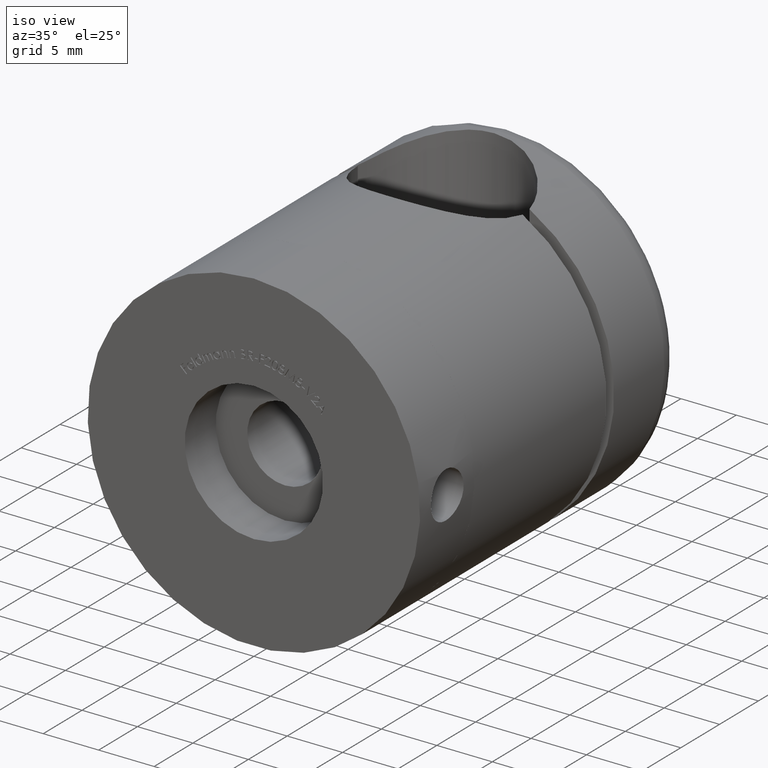
[diagram: clean part render]
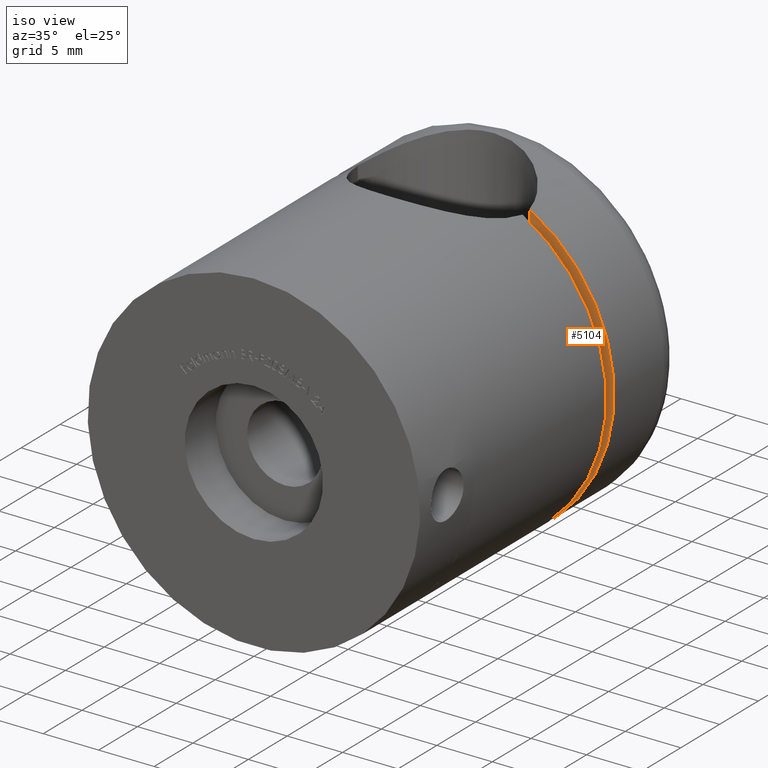
[diagram: same view with one face highlighted and labeled with its STEP entity id]
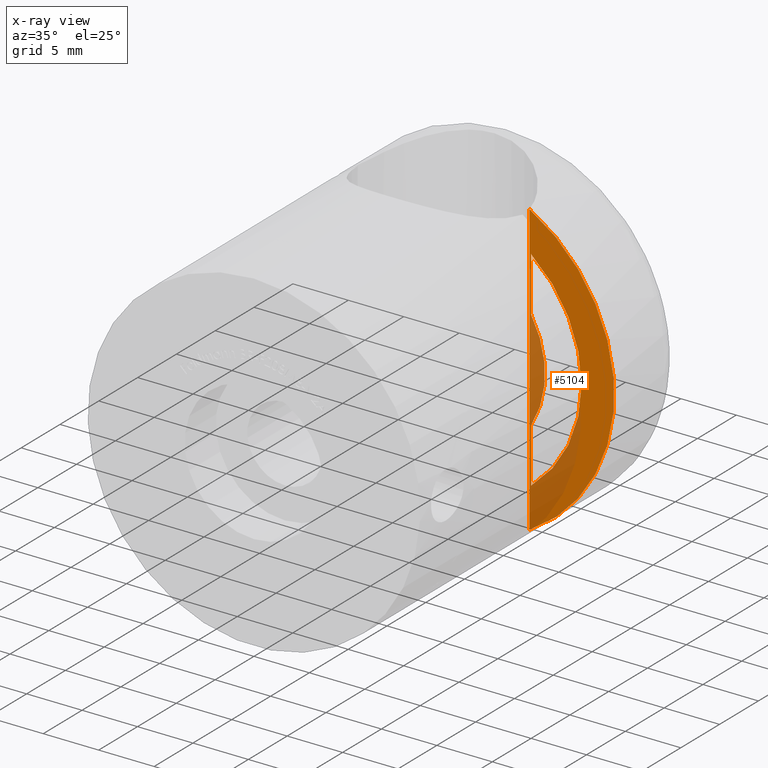
[diagram: x-ray of the same camera — body ghosted, the highlighted face saturated]
A machine part, iso view. The second image highlights one B-rep face of the part: STEP entity #5104.
The next image is the same camera in x-ray: the body ghosted, the highlighted face saturated — about 28% of this face is hidden behind the body in this view.
In plain terms, the highlighted planar face has unit normal (0, -1, 0).
Its self-contained STEP definition (entity closure, byte-faithful):
#138 = FACE_BOUND ( 'NONE', #3346, .T. ) ;
#182 = CIRCLE ( 'NONE', #963, 15.00000000000000000 ) ;
#696 = AXIS2_PLACEMENT_3D ( 'NONE', #5524, #10850, #8062 ) ;
#963 = AXIS2_PLACEMENT_3D ( 'NONE', #16579, #16707, #9943 ) ;
#993 = CARTESIAN_POINT ( 'NONE',  ( 7.499999999999994700, 10.00000000000000200, -30.00000000000000400 ) ) ;
#1139 = EDGE_CURVE ( 'NONE', #6866, #12680, #9645, .T. ) ;
#2034 = ORIENTED_EDGE ( 'NONE', *, *, #10130, .F. ) ;
#2227 = CARTESIAN_POINT ( 'NONE',  ( 7.499999999999999100, 10.00000000000000200, 9.431463301100206900 ) ) ;
#2327 = VERTEX_POINT ( 'NONE', #2227 ) ;
#2791 = CARTESIAN_POINT ( 'NONE',  ( 7.499999999999997300, 10.00000000000000200, -9.431463301100206900 ) ) ;
#2909 = AXIS2_PLACEMENT_3D ( 'NONE', #7305, #9878, #7431 ) ;
#3199 = VERTEX_POINT ( 'NONE', #6427 ) ;
#3346 = EDGE_LOOP ( 'NONE', ( #2034, #14224, #9591, #12718 ) ) ;
#3347 = CARTESIAN_POINT ( 'NONE',  ( 0.0000000000000000000, 10.00000000000000000, 0.0000000000000000000 ) ) ;
#3728 = LINE ( 'NONE', #993, #13902 ) ;
#3749 = ORIENTED_EDGE ( 'NONE', *, *, #9652, .F. ) ;
#3790 = VERTEX_POINT ( 'NONE', #12756 ) ;
#3951 = CARTESIAN_POINT ( 'NONE',  ( 7.499999999999997300, 10.00000000000000200, -4.506939094329993600 ) ) ;
#4762 = EDGE_CURVE ( 'NONE', #2327, #6866, #15965, .T. ) ;
#5104 = ADVANCED_FACE ( 'NONE', ( #138, #16365 ), #14686, .T. ) ;
#5328 = CARTESIAN_POINT ( 'NONE',  ( 7.499999999999999100, 10.00000000000000200, 4.506939094329993600 ) ) ;
#5415 = LINE ( 'NONE', #7627, #8497 ) ;
#5524 = CARTESIAN_POINT ( 'NONE',  ( 0.0000000000000000000, 10.00000000000000000, 0.0000000000000000000 ) ) ;
#6021 = AXIS2_PLACEMENT_3D ( 'NONE', #3347, #7505, #16670 ) ;
#6184 = VERTEX_POINT ( 'NONE', #5328 ) ;
#6427 = CARTESIAN_POINT ( 'NONE',  ( 7.348469228349534500, 10.00000000000000000, 13.07669683062201900 ) ) ;
#6527 = VECTOR ( 'NONE', #8464, 1000.000000000000000 ) ;
#6689 = ORIENTED_EDGE ( 'NONE', *, *, #10917, .T. ) ;
#6866 = VERTEX_POINT ( 'NONE', #2791 ) ;
#7305 = CARTESIAN_POINT ( 'NONE',  ( 0.0000000000000000000, 10.00000000000000200, 0.0000000000000000000 ) ) ;
#7431 = DIRECTION ( 'NONE',  ( -1.776356839400250500E-015, 0.0000000000000000000, 1.000000000000000000 ) ) ;
#7505 = DIRECTION ( 'NONE',  ( 0.0000000000000000000, 1.000000000000000000, 0.0000000000000000000 ) ) ;
#7627 = CARTESIAN_POINT ( 'NONE',  ( 7.348469228349534500, 10.00000000000000000, -15.00000000000000000 ) ) ;
#8062 = DIRECTION ( 'NONE',  ( 0.0000000000000000000, -0.0000000000000000000, 1.000000000000000000 ) ) ;
#8464 = DIRECTION ( 'NONE',  ( 1.156482317317871500E-016, -0.0000000000000000000, 1.000000000000000000 ) ) ;
#8497 = VECTOR ( 'NONE', #8859, 1000.000000000000000 ) ;
#8859 = DIRECTION ( 'NONE',  ( 0.0000000000000000000, 0.0000000000000000000, -1.000000000000000000 ) ) ;
#9591 = ORIENTED_EDGE ( 'NONE', *, *, #1139, .F. ) ;
#9645 = LINE ( 'NONE', #12243, #6527 ) ;
#9652 = EDGE_CURVE ( 'NONE', #3199, #3790, #5415, .T. ) ;
#9878 = DIRECTION ( 'NONE',  ( -0.0000000000000000000, -1.000000000000000000, -0.0000000000000000000 ) ) ;
#9943 = DIRECTION ( 'NONE',  ( 0.0000000000000000000, 0.0000000000000000000, 1.000000000000000000 ) ) ;
#10130 = EDGE_CURVE ( 'NONE', #6184, #2327, #3728, .T. ) ;
#10850 = DIRECTION ( 'NONE',  ( 0.0000000000000000000, 1.000000000000000000, 0.0000000000000000000 ) ) ;
#10917 = EDGE_CURVE ( 'NONE', #3199, #3790, #182, .T. ) ;
#10979 = CIRCLE ( 'NONE', #2909, 8.750000000000001800 ) ;
#12243 = CARTESIAN_POINT ( 'NONE',  ( 7.499999999999994700, 10.00000000000000200, -30.00000000000000400 ) ) ;
#12680 = VERTEX_POINT ( 'NONE', #3951 ) ;
#12718 = ORIENTED_EDGE ( 'NONE', *, *, #4762, .F. ) ;
#12756 = CARTESIAN_POINT ( 'NONE',  ( 7.348469228349534500, 10.00000000000000000, -13.07669683062201900 ) ) ;
#13303 = EDGE_LOOP ( 'NONE', ( #6689, #3749 ) ) ;
#13902 = VECTOR ( 'NONE', #14330, 1000.000000000000000 ) ;
#14224 = ORIENTED_EDGE ( 'NONE', *, *, #16488, .F. ) ;
#14330 = DIRECTION ( 'NONE',  ( 1.156482317317871500E-016, -0.0000000000000000000, 1.000000000000000000 ) ) ;
#14686 = PLANE ( 'NONE',  #696 ) ;
#15965 = CIRCLE ( 'NONE', #6021, 12.05000000000000100 ) ;
#16365 = FACE_OUTER_BOUND ( 'NONE', #13303, .T. ) ;
#16488 = EDGE_CURVE ( 'NONE', #12680, #6184, #10979, .T. ) ;
#16579 = CARTESIAN_POINT ( 'NONE',  ( 0.0000000000000000000, 10.00000000000000000, 0.0000000000000000000 ) ) ;
#16670 = DIRECTION ( 'NONE',  ( 0.0000000000000000000, 0.0000000000000000000, 1.000000000000000000 ) ) ;
#16707 = DIRECTION ( 'NONE',  ( 0.0000000000000000000, 1.000000000000000000, 0.0000000000000000000 ) ) ;